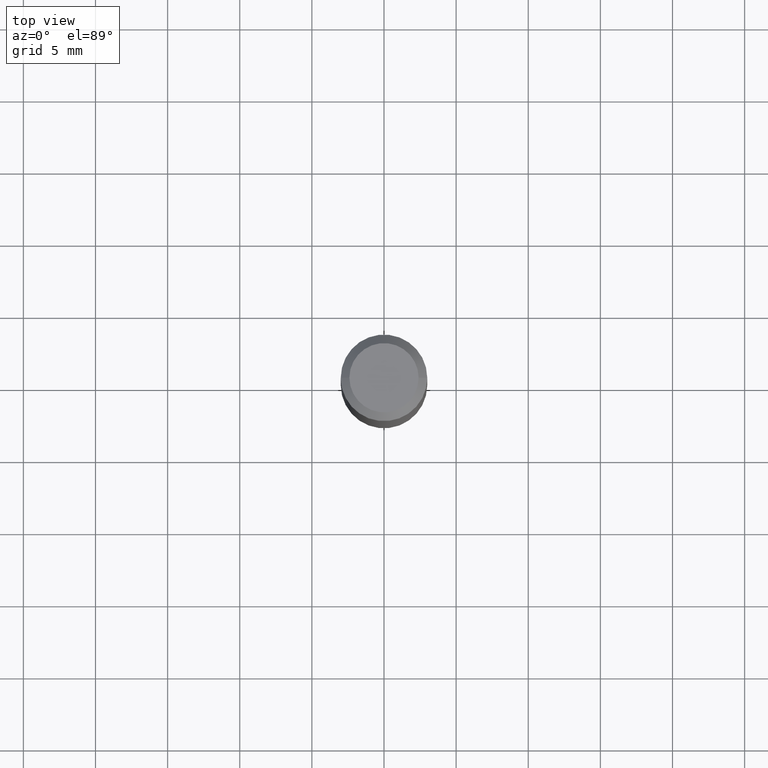
[diagram: clean part render]
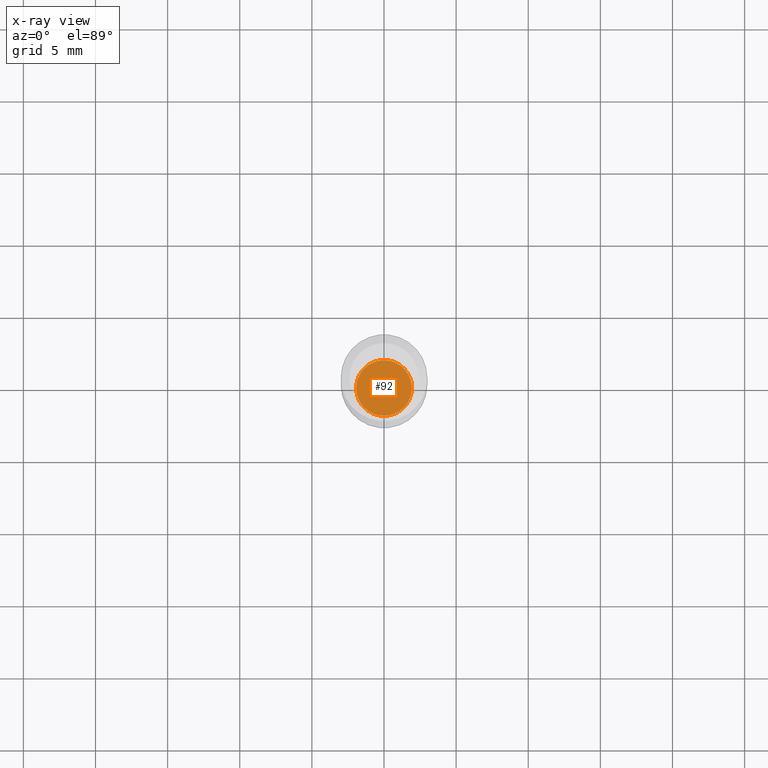
[diagram: x-ray — body ghosted, one internal face saturated and labeled with its STEP entity id]
A machine part, top view, then the same camera in x-ray: the body is ghosted and one INTERNAL B-rep face — a face not visible from any outside direction — is saturated and labeled: STEP entity #92.
In plain terms, the highlighted planar face has unit normal (-0, 0, 1).
Its self-contained STEP definition (entity closure, byte-faithful):
#42 = EDGE_CURVE ( 'NONE', #87, #91, #315, .T. ) ;
#87 = VERTEX_POINT ( 'NONE', #189 ) ;
#91 = VERTEX_POINT ( 'NONE', #351 ) ;
#92 = ADVANCED_FACE ( 'NONE', ( #503 ), #514, .F. ) ;
#109 = DIRECTION ( 'NONE',  ( -2.445468806185136597E-29, 3.491481338843145583E-15, 1.000000000000000000 ) ) ;
#149 = CARTESIAN_POINT ( 'NONE',  ( -9.143302097589743756E-31, -1.147794272764384760E-14, -1.622500000000000053 ) ) ;
#181 = CARTESIAN_POINT ( 'NONE',  ( 3.967773138035384644E-29, -5.664928472273003906E-15, -1.622500000000000275 ) ) ;
#189 = CARTESIAN_POINT ( 'NONE',  ( 0.07625000000000001221, -6.197379376446582216E-15, -1.622500000000000275 ) ) ;
#216 = ORIENTED_EDGE ( 'NONE', *, *, #448, .F. ) ;
#222 = EDGE_LOOP ( 'NONE', ( #281, #216 ) ) ;
#252 = CIRCLE ( 'NONE', #428, 0.07625000000000001221 ) ;
#276 = AXIS2_PLACEMENT_3D ( 'NONE', #149, #466, #424 ) ;
#281 = ORIENTED_EDGE ( 'NONE', *, *, #42, .F. ) ;
#306 = DIRECTION ( 'NONE',  ( 1.000000000000000000, -6.982962677686265133E-15, 0.000000000000000000 ) ) ;
#309 = CARTESIAN_POINT ( 'NONE',  ( 3.967773138035384644E-29, -5.664928472273003906E-15, -1.622500000000000275 ) ) ;
#315 = CIRCLE ( 'NONE', #434, 0.07625000000000001221 ) ;
#351 = CARTESIAN_POINT ( 'NONE',  ( -0.07625000000000001221, -5.120490409081816818E-15, -1.622500000000000275 ) ) ;
#424 = DIRECTION ( 'NONE',  ( 1.000000000000000000, -6.982962677686265922E-15, 4.876176775795935793E-29 ) ) ;
#428 = AXIS2_PLACEMENT_3D ( 'NONE', #181, #109, #306 ) ;
#434 = AXIS2_PLACEMENT_3D ( 'NONE', #309, #476, #473 ) ;
#448 = EDGE_CURVE ( 'NONE', #91, #87, #252, .T. ) ;
#466 = DIRECTION ( 'NONE',  ( -2.438088387897960049E-29, 3.491481338843145188E-15, 1.000000000000000000 ) ) ;
#473 = DIRECTION ( 'NONE',  ( 1.000000000000000000, -6.982962677686265133E-15, 0.000000000000000000 ) ) ;
#476 = DIRECTION ( 'NONE',  ( -2.445468806185136597E-29, 3.491481338843145583E-15, 1.000000000000000000 ) ) ;
#503 = FACE_OUTER_BOUND ( 'NONE', #222, .T. ) ;
#514 = PLANE ( 'NONE',  #276 ) ;